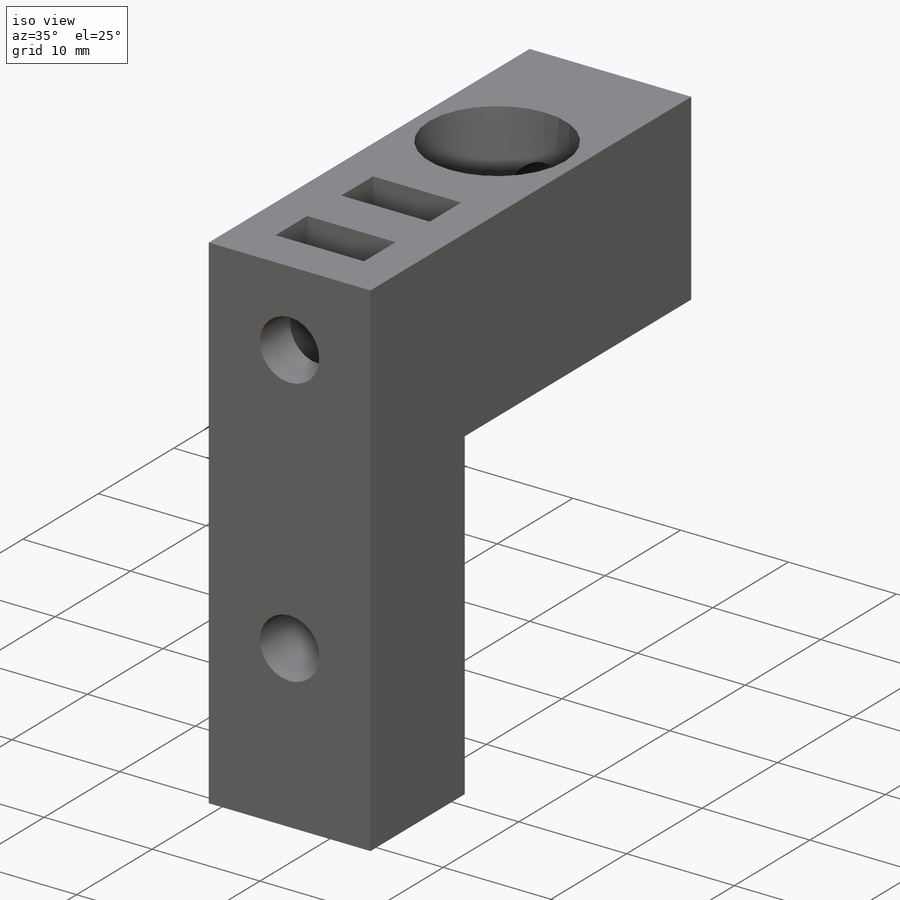
[diagram: iso view]
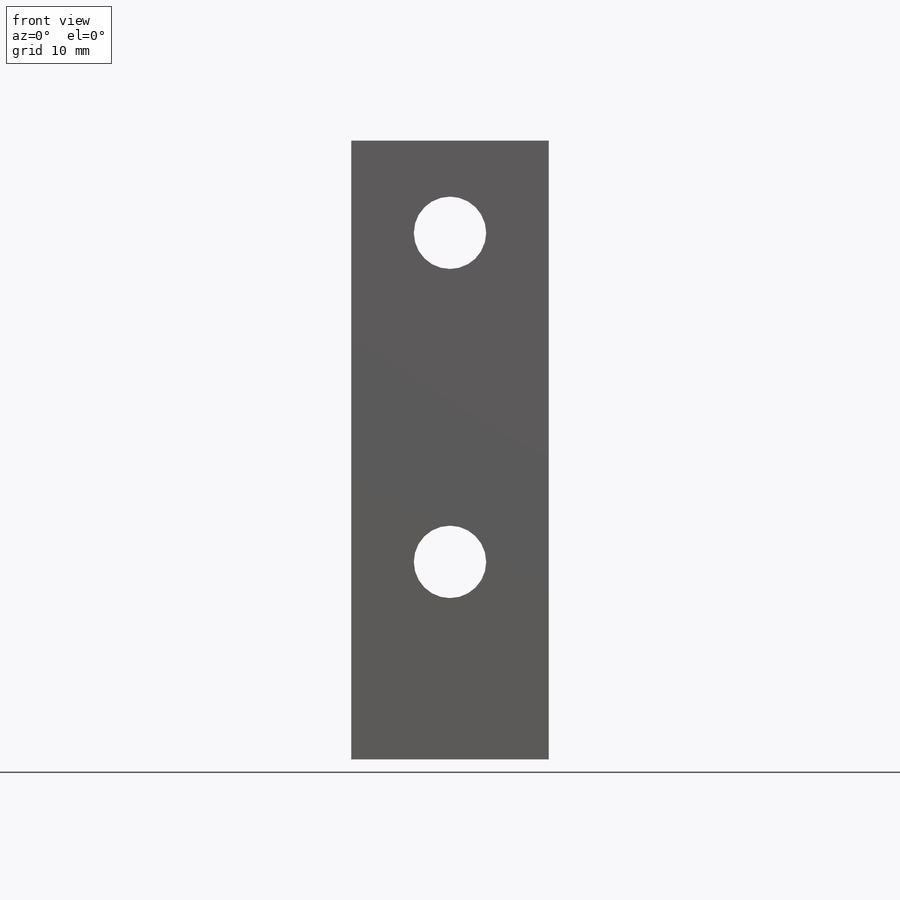
[diagram: front view]
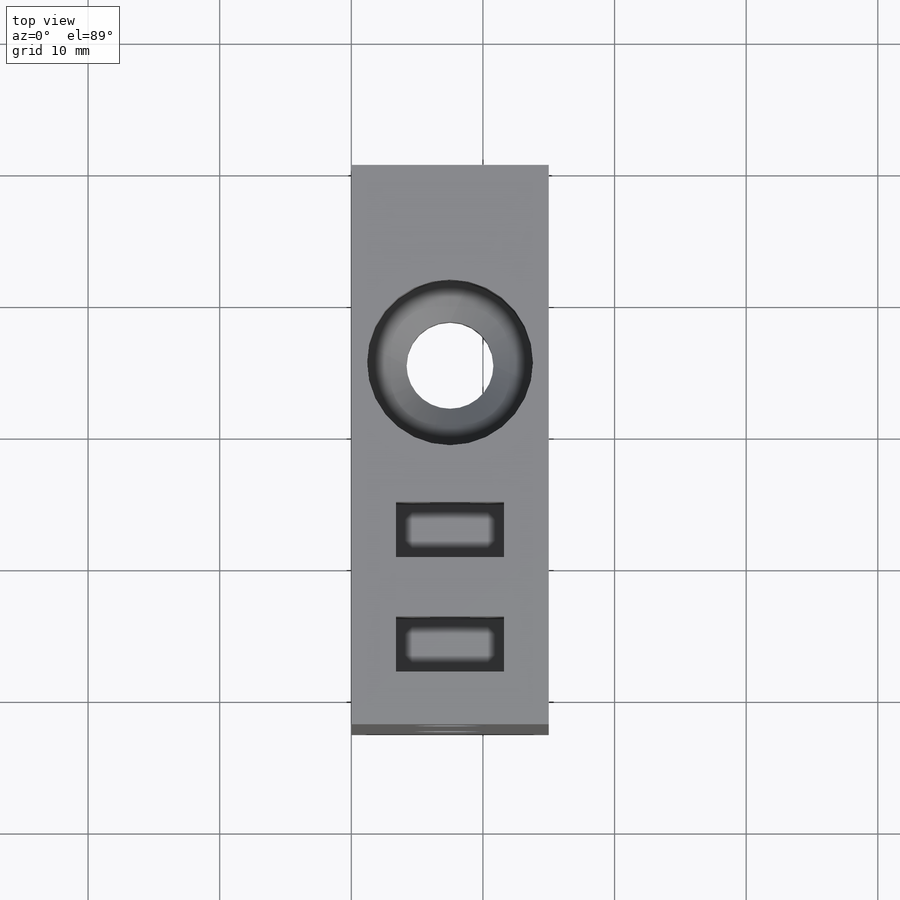
[diagram: top view]
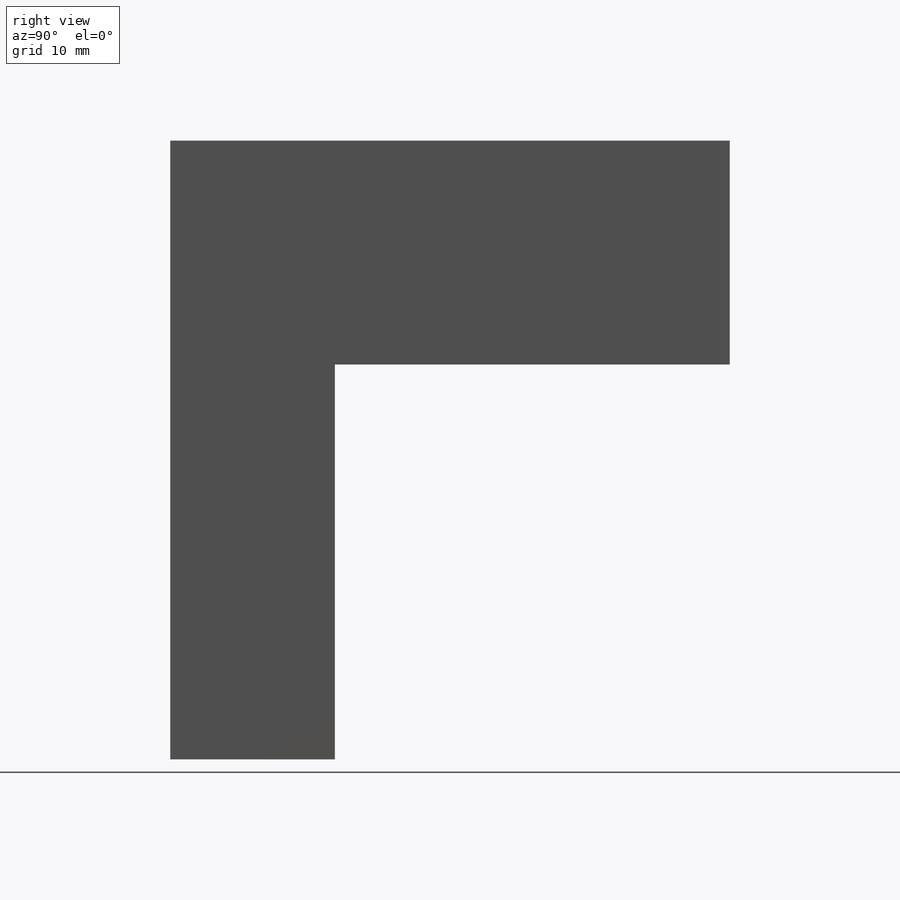
[diagram: right view]
SOLIDWORKS PART (.sldprt)
format: sldprt  version: not decoded by parser v0  size: 305,152 bytes
history: native  units: mm
features: sketch x9, cut_extrude x6, material x1, extrude x1, hole x1 (+12 scaffold rows collapsed)
feature tree (30):
  scaffold x12  (default folders/planes/origin — collapsed)
  material  "ABS PC"
  sketch  "Sketch1"  dims[c1.D1=~16.763417mm c1.D2=~51.419083mm c2.D1=47.0mm c2.D2=15.0mm]
  extrude  "Boss-Extrude1"  Depth=42.5mm
  sketch  "Sketch2"  dims[c1.D1=~28.101155mm c1.D2=30.7142mm c2.D1=30.0mm c2.D2=30.0mm]
  cut_extrude  "Cut-Extrude1"  [1 undecoded]
  sketch  "Sketch3"  dims[c1.D1=5.5mm c1.D2=5.5mm c1.D4=3.5mm c1.D5=8.9mm c1.D3=7.5mm c2.D4=15.0mm c2.D5=7.0mm]
  cut_extrude  "Cut-Extrude2"  Depth=15mm
  sketch  "Sketch4"  dims[c1.D1=6.5mm c1.D2=6.5mm c1.D3=6.5mm c2.D2=7.5mm c2.D3=15.0mm]
  cut_extrude  "Cut-Extrude3"  [1 undecoded]
  sketch  "Sketch5"  dims[D1=5.5mm]
  cut_extrude  "Cut-Extrude4"  [1 undecoded]
  sketch  "Sketch6"  dims[D1=12.6mm]
  cut_extrude  "Cut-Extrude6"  Depth=15mm
  hole  "CSK for M6 Flat Head Machine Screw1"  Diameter=6.6mm Depth=37.2mm
  sketch  "Sketch8"
  sketch  "Sketch7"  dims[hole-wizard template sketch: 55 standard entries collapsed; hole parameters kept: c17.Thru Hole Depth=37.2mm c17.Near C'Sink Dia.=12.6mm c17.D4=~3.666174mm c17.Near C'Sink Angle=90.0deg]
  sketch  "Sketch10"  dims[c1.D1=~8.970072mm c1.D2=~2.780628mm c2.D1=~8.970072mm c2.D2=~2.844188mm c3.D1=4.2mm c3.D2=8.2mm c3.D3=3.4mm c3.D4=4.0mm c3.D5=4.5mm]
  cut_extrude  "Cut-Extrude7"  Depth=12mm
decode coverage: 13 of 17 modeling features carry decoded parameters
note: ~ marks probable driven/reference dimensions
note: 3 parameter values undecoded
summary: no parameter record found for 3 features
note: suppression state not decoded; provenance and decode notes live in map.json
